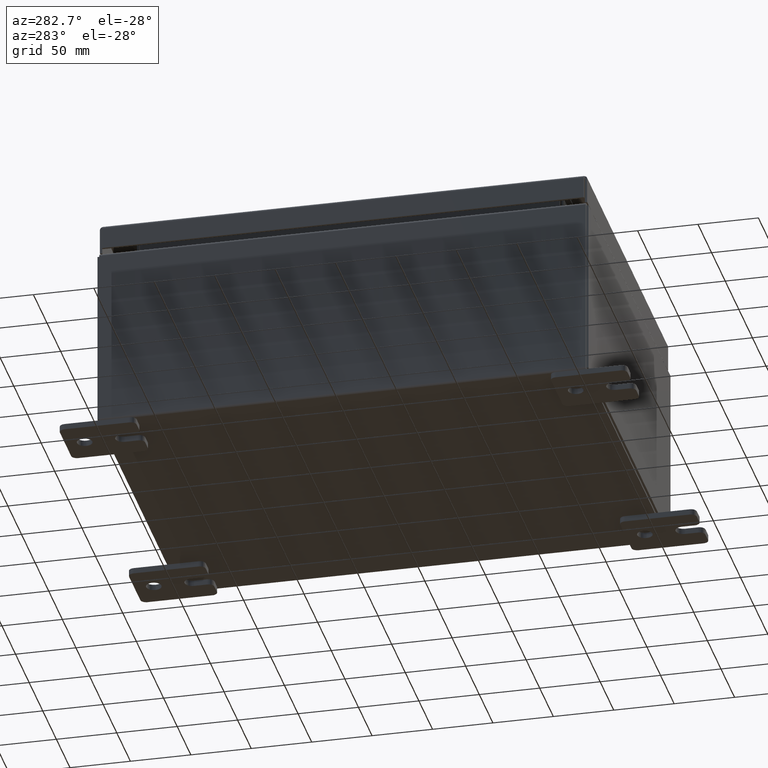
[diagram: clean part render]
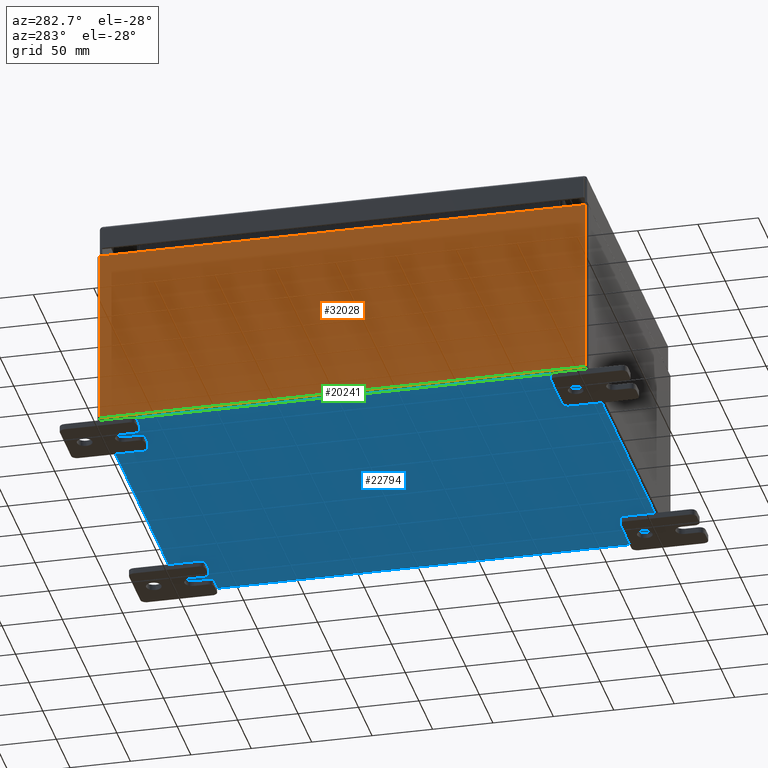
[diagram: same view with three faces highlighted in distinct colors, each labeled with its STEP entity id]
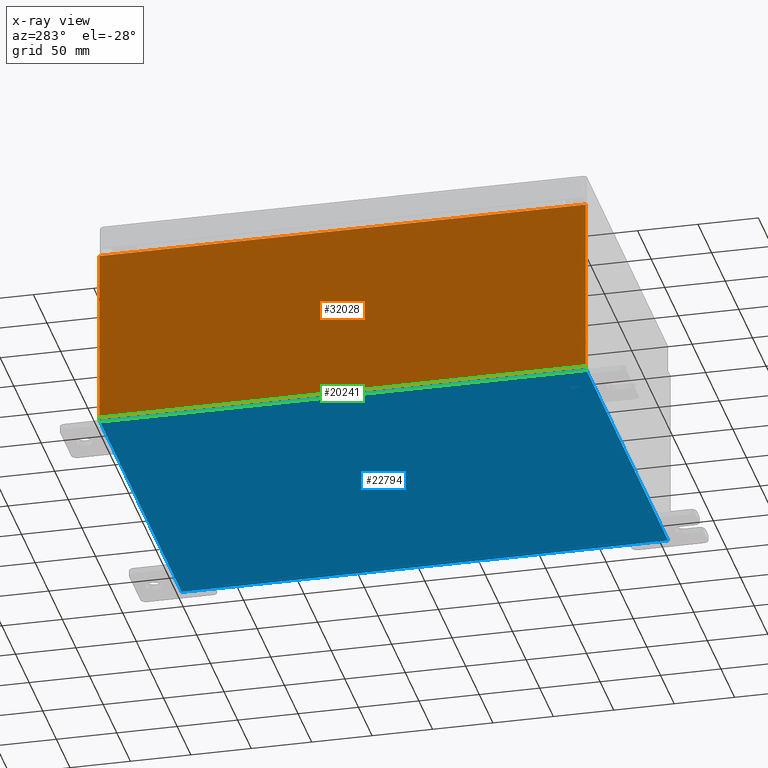
[diagram: x-ray of the same camera — body ghosted, the three highlighted faces saturated]
A machine part, auxiliary view with three faces highlighted in distinct colors.
The next image is the same camera in x-ray (body ghosted, the three faces saturated) — at least one of them is partly hidden behind the body in this view.
Their STEP definitions:

[orange] entity #32028 — the highlighted planar face has unit normal (1, 0, 0).
#1004 = VECTOR ( 'NONE', #34273, 39.37007874015748100 ) ;
#2224 = EDGE_LOOP ( 'NONE', ( #24087, #21998, #60168, #10381 ) ) ;
#3867 = DIRECTION ( 'NONE',  ( 0.0000000000000000000, 1.000000000000000000, 0.0000000000000000000 ) ) ;
#4201 = EDGE_CURVE ( 'NONE', #54552, #29268, #29066, .T. ) ;
#4713 = CARTESIAN_POINT ( 'NONE',  ( -6.000000000000001800, 7.925299999999998200, 0.01299999999999984700 ) ) ;
#5072 = CARTESIAN_POINT ( 'NONE',  ( -6.000000000000022200, 7.925299999999998200, 5.837599999999999200 ) ) ;
#5525 = DIRECTION ( 'NONE',  ( 2.415631001295207100E-031, 1.000000000000000000, -6.893992640440775600E-017 ) ) ;
#7309 = EDGE_CURVE ( 'NONE', #44308, #29268, #15464, .T. ) ;
#7317 = CARTESIAN_POINT ( 'NONE',  ( -6.000000000000001800, -7.925300000000000900, 0.01300000000000094000 ) ) ;
#8004 = VERTEX_POINT ( 'NONE', #32569 ) ;
#10381 = ORIENTED_EDGE ( 'NONE', *, *, #16785, .T. ) ;
#14992 = LINE ( 'NONE', #34086, #1004 ) ;
#15464 = LINE ( 'NONE', #4713, #52830 ) ;
#16785 = EDGE_CURVE ( 'NONE', #44308, #8004, #14992, .T. ) ;
#18629 = DIRECTION ( 'NONE',  ( 3.503965158194251300E-015, 0.0000000000000000000, -1.000000000000000000 ) ) ;
#18703 = DIRECTION ( 'NONE',  ( 1.000000000000000000, 0.0000000000000000000, 3.503965158194251300E-015 ) ) ;
#19237 = CARTESIAN_POINT ( 'NONE',  ( -6.000000000000001800, 0.0000000000000000000, -2.128460460517709800E-014 ) ) ;
#19661 = CARTESIAN_POINT ( 'NONE',  ( -6.000000000000001800, 7.925299999999998200, -2.128460460517709800E-014 ) ) ;
#19725 = PLANE ( 'NONE',  #56220 ) ;
#21998 = ORIENTED_EDGE ( 'NONE', *, *, #4201, .T. ) ;
#22536 = CARTESIAN_POINT ( 'NONE',  ( -6.000000000000023100, -7.925300000000000900, 5.837599999999999200 ) ) ;
#24087 = ORIENTED_EDGE ( 'NONE', *, *, #53931, .T. ) ;
#29066 = LINE ( 'NONE', #19661, #51087 ) ;
#29268 = VERTEX_POINT ( 'NONE', #43054 ) ;
#32028 = ADVANCED_FACE ( 'NONE', ( #41050 ), #19725, .F. ) ;
#32569 = CARTESIAN_POINT ( 'NONE',  ( -6.000000000000023100, -7.925300000000000000, 5.837599999999999200 ) ) ;
#34086 = CARTESIAN_POINT ( 'NONE',  ( -6.000000000000001800, -7.925300000000000900, -1.982302697000673400E-014 ) ) ;
#34273 = DIRECTION ( 'NONE',  ( -3.503965158194252100E-015, 1.844192188523290500E-016, 1.000000000000000000 ) ) ;
#34530 = LINE ( 'NONE', #22536, #45637 ) ;
#38032 = DIRECTION ( 'NONE',  ( 3.503965158194252100E-015, 0.0000000000000000000, -1.000000000000000000 ) ) ;
#41050 = FACE_OUTER_BOUND ( 'NONE', #2224, .T. ) ;
#43054 = CARTESIAN_POINT ( 'NONE',  ( -6.000000000000001800, 7.925299999999998200, 0.01299999999999974100 ) ) ;
#44308 = VERTEX_POINT ( 'NONE', #7317 ) ;
#45637 = VECTOR ( 'NONE', #3867, 39.37007874015748100 ) ;
#51087 = VECTOR ( 'NONE', #38032, 39.37007874015748100 ) ;
#52830 = VECTOR ( 'NONE', #5525, 39.37007874015748100 ) ;
#53931 = EDGE_CURVE ( 'NONE', #8004, #54552, #34530, .T. ) ;
#54552 = VERTEX_POINT ( 'NONE', #5072 ) ;
#56220 = AXIS2_PLACEMENT_3D ( 'NONE', #19237, #18703, #18629 ) ;
#60168 = ORIENTED_EDGE ( 'NONE', *, *, #7309, .F. ) ;

[blue] entity #22794 — the highlighted planar face has unit normal (0, 0, -1).
#7019 = CARTESIAN_POINT ( 'NONE',  ( -6.000000000000001800, -7.925300000000000900, -0.07470000000000000300 ) ) ;
#7093 = DIRECTION ( 'NONE',  ( 1.000000000000000000, 0.0000000000000000000, 0.0000000000000000000 ) ) ;
#8081 = AXIS2_PLACEMENT_3D ( 'NONE', #37728, #37260, #37183 ) ;
#10419 = ORIENTED_EDGE ( 'NONE', *, *, #15345, .F. ) ;
#12934 = CARTESIAN_POINT ( 'NONE',  ( 5.912299999999999200, 7.925300000000000000, -0.07469999999999994700 ) ) ;
#14611 = VERTEX_POINT ( 'NONE', #19506 ) ;
#15345 = EDGE_CURVE ( 'NONE', #23151, #28511, #30162, .T. ) ;
#16290 = LINE ( 'NONE', #19911, #55052 ) ;
#19506 = CARTESIAN_POINT ( 'NONE',  ( -5.912300000000001000, 7.925299999999998200, -0.07470000000000000300 ) ) ;
#19889 = CARTESIAN_POINT ( 'NONE',  ( 5.912299999999994800, -7.925300000000000900, -0.07470000000000000300 ) ) ;
#19911 = CARTESIAN_POINT ( 'NONE',  ( -6.000000000000001800, 7.925299999999998200, -0.07470000000000000300 ) ) ;
#22794 = ADVANCED_FACE ( 'NONE', ( #53441 ), #37316, .T. ) ;
#23151 = VERTEX_POINT ( 'NONE', #31042 ) ;
#25648 = EDGE_LOOP ( 'NONE', ( #10419, #59438, #51084, #55688 ) ) ;
#27046 = LINE ( 'NONE', #60841, #40983 ) ;
#28511 = VERTEX_POINT ( 'NONE', #19889 ) ;
#29996 = CARTESIAN_POINT ( 'NONE',  ( -5.912300000000001000, -7.925300000000000900, -0.07469999999999874000 ) ) ;
#30162 = LINE ( 'NONE', #7019, #55111 ) ;
#31042 = CARTESIAN_POINT ( 'NONE',  ( -5.912300000000001000, -7.925300000000000900, -0.07469999999999874000 ) ) ;
#34686 = DIRECTION ( 'NONE',  ( -0.0000000000000000000, 1.000000000000000000, -8.208677865577646300E-017 ) ) ;
#34996 = EDGE_CURVE ( 'NONE', #48861, #28511, #27046, .T. ) ;
#37136 = DIRECTION ( 'NONE',  ( -0.0000000000000000000, -1.000000000000000000, -0.0000000000000000000 ) ) ;
#37183 = DIRECTION ( 'NONE',  ( -1.000000000000000000, 0.0000000000000000000, -0.0000000000000000000 ) ) ;
#37260 = DIRECTION ( 'NONE',  ( 0.0000000000000000000, 0.0000000000000000000, -1.000000000000000000 ) ) ;
#37316 = PLANE ( 'NONE',  #8081 ) ;
#37728 = CARTESIAN_POINT ( 'NONE',  ( 0.0000000000000000000, 0.0000000000000000000, -0.07470000000000000300 ) ) ;
#40983 = VECTOR ( 'NONE', #37136, 39.37007874015748100 ) ;
#45891 = EDGE_CURVE ( 'NONE', #23151, #14611, #54270, .T. ) ;
#46875 = EDGE_CURVE ( 'NONE', #48861, #14611, #16290, .T. ) ;
#48861 = VERTEX_POINT ( 'NONE', #12934 ) ;
#49909 = VECTOR ( 'NONE', #34686, 39.37007874015748100 ) ;
#51084 = ORIENTED_EDGE ( 'NONE', *, *, #46875, .F. ) ;
#52628 = DIRECTION ( 'NONE',  ( -1.000000000000000000, -0.0000000000000000000, -0.0000000000000000000 ) ) ;
#53441 = FACE_OUTER_BOUND ( 'NONE', #25648, .T. ) ;
#54270 = LINE ( 'NONE', #29996, #49909 ) ;
#55052 = VECTOR ( 'NONE', #52628, 39.37007874015748100 ) ;
#55111 = VECTOR ( 'NONE', #7093, 39.37007874015748100 ) ;
#55688 = ORIENTED_EDGE ( 'NONE', *, *, #34996, .T. ) ;
#59438 = ORIENTED_EDGE ( 'NONE', *, *, #45891, .T. ) ;
#60841 = CARTESIAN_POINT ( 'NONE',  ( 5.912299999999999200, 7.925300000000000000, -0.07469999999999994700 ) ) ;

[green] entity #20241 — the highlighted cylindrical surface (edge-blend (fillet) strip) has radius 2.2276 mm, axis along (0, -1, 0).
#2585 = ORIENTED_EDGE ( 'NONE', *, *, #4850, .F. ) ;
#4713 = CARTESIAN_POINT ( 'NONE',  ( -6.000000000000001800, 7.925299999999998200, 0.01299999999999984700 ) ) ;
#4850 = EDGE_CURVE ( 'NONE', #44308, #23151, #13809, .T. ) ;
#5525 = DIRECTION ( 'NONE',  ( 2.415631001295207100E-031, 1.000000000000000000, -6.893992640440775600E-017 ) ) ;
#7309 = EDGE_CURVE ( 'NONE', #44308, #29268, #15464, .T. ) ;
#7317 = CARTESIAN_POINT ( 'NONE',  ( -6.000000000000001800, -7.925300000000000900, 0.01300000000000094000 ) ) ;
#12334 = DIRECTION ( 'NONE',  ( 0.0000000000000000000, -1.000000000000000000, 8.208677865577646300E-017 ) ) ;
#12413 = DIRECTION ( 'NONE',  ( 0.0000000000000000000, 0.0000000000000000000, -1.000000000000000000 ) ) ;
#12840 = DIRECTION ( 'NONE',  ( -1.000000000000000000, 0.0000000000000000000, -3.504366012397134600E-015 ) ) ;
#13125 = CARTESIAN_POINT ( 'NONE',  ( -5.912300000000001000, -7.925300000000000900, 0.01300000000000134900 ) ) ;
#13809 = CIRCLE ( 'NONE', #30589, 0.08770000000000009700 ) ;
#14572 = CARTESIAN_POINT ( 'NONE',  ( -5.912300000000001000, 7.925299999999998200, 0.01300000000000004800 ) ) ;
#14611 = VERTEX_POINT ( 'NONE', #19506 ) ;
#15464 = LINE ( 'NONE', #4713, #52830 ) ;
#17514 = ORIENTED_EDGE ( 'NONE', *, *, #49037, .F. ) ;
#19246 = DIRECTION ( 'NONE',  ( 0.0000000000000000000, 0.0000000000000000000, -1.000000000000000000 ) ) ;
#19506 = CARTESIAN_POINT ( 'NONE',  ( -5.912300000000001000, 7.925299999999998200, -0.07470000000000000300 ) ) ;
#20241 = ADVANCED_FACE ( 'NONE', ( #46766 ), #35667, .T. ) ;
#22616 = AXIS2_PLACEMENT_3D ( 'NONE', #13125, #12334, #12840 ) ;
#23151 = VERTEX_POINT ( 'NONE', #31042 ) ;
#29268 = VERTEX_POINT ( 'NONE', #43054 ) ;
#29996 = CARTESIAN_POINT ( 'NONE',  ( -5.912300000000001000, -7.925300000000000900, -0.07469999999999874000 ) ) ;
#30589 = AXIS2_PLACEMENT_3D ( 'NONE', #51349, #55236, #12413 ) ;
#31042 = CARTESIAN_POINT ( 'NONE',  ( -5.912300000000001000, -7.925300000000000900, -0.07469999999999874000 ) ) ;
#34686 = DIRECTION ( 'NONE',  ( -0.0000000000000000000, 1.000000000000000000, -8.208677865577646300E-017 ) ) ;
#35667 = CYLINDRICAL_SURFACE ( 'NONE', #22616, 0.08770000000000026400 ) ;
#40290 = EDGE_LOOP ( 'NONE', ( #50527, #2585, #49409, #17514 ) ) ;
#43054 = CARTESIAN_POINT ( 'NONE',  ( -6.000000000000001800, 7.925299999999998200, 0.01299999999999974100 ) ) ;
#44308 = VERTEX_POINT ( 'NONE', #7317 ) ;
#45891 = EDGE_CURVE ( 'NONE', #23151, #14611, #54270, .T. ) ;
#46766 = FACE_OUTER_BOUND ( 'NONE', #40290, .T. ) ;
#47316 = DIRECTION ( 'NONE',  ( -0.0000000000000000000, 1.000000000000000000, -8.208677865577646300E-017 ) ) ;
#48089 = CIRCLE ( 'NONE', #54154, 0.08770000000000009700 ) ;
#49037 = EDGE_CURVE ( 'NONE', #14611, #29268, #48089, .T. ) ;
#49409 = ORIENTED_EDGE ( 'NONE', *, *, #7309, .T. ) ;
#49909 = VECTOR ( 'NONE', #34686, 39.37007874015748100 ) ;
#50527 = ORIENTED_EDGE ( 'NONE', *, *, #45891, .F. ) ;
#51349 = CARTESIAN_POINT ( 'NONE',  ( -5.912300000000001000, -7.925300000000000900, 0.01300000000000134900 ) ) ;
#52830 = VECTOR ( 'NONE', #5525, 39.37007874015748100 ) ;
#54154 = AXIS2_PLACEMENT_3D ( 'NONE', #14572, #47316, #19246 ) ;
#54270 = LINE ( 'NONE', #29996, #49909 ) ;
#55236 = DIRECTION ( 'NONE',  ( 0.0000000000000000000, -1.000000000000000000, 8.208677865577646300E-017 ) ) ;